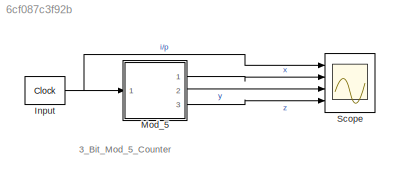
MODEL slx_6cf087c3f92b
KIND model
CONFIG AbsTol = auto
CONFIG EnableMultiTasking = off
CONFIG FixedStep = auto
CONFIG MaxStep = auto
CONFIG MinStep = auto
CONFIG RelTol = 1e-3
CONFIG SampleTimeConstraint = Unconstrained
CONFIG SolverName = VariableStepAuto
CONFIG StartTime = 0.0
CONFIG StopTime = 10.0
BLOCK [Reference] Input  REF=simulink_extras/Flip Flops/Clock
  Ports = [0, 1]
  SourceBlock = simulink_extras/Flip Flops/Clock
  SourceProductBaseCode = SL
  SourceType = Digital clock
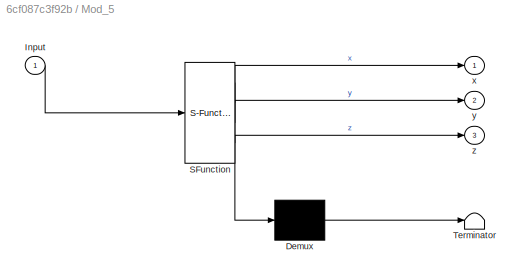
BLOCK [SubSystem] Mod_5
  ErrorFcn = Stateflow.Translate.translate
  PermitHierarchicalResolution = ExplicitOnly
  Ports = [1, 3]
  RequestExecContextInheritance = off
  SFBlockType = Chart
  TreatAsAtomicUnit = on
BLOCK [Demux] Mod_5/ Demux 
  Outputs = 1
  Ports = [1, 1]
BLOCK [S-Function] Mod_5/ SFunction 
  EnableBusSupport = on
  FunctionName = sf_sfun
  PortCounts = [1 4]
  Ports = [1, 4]
  SFcnIsStateOwnerBlock = off
  SFunctionDeploymentMode = off
  Tag = Stateflow S-Function 3
BLOCK [Terminator] Mod_5/ Terminator 
BLOCK [Inport] Mod_5/Input
BLOCK [Outport] Mod_5/x
BLOCK [Outport] Mod_5/y
  Port = 2
BLOCK [Outport] Mod_5/z
  Port = 3
BLOCK [Scope] Scope
  Floating = off
  NumInputPorts = 4
  Ports = [4]
  ScopeSpecificationString = Simulink.scopes.TimeScopeBlockCfg('CurrentConfiguration', extmgr.ConfigurationSet(extmgr.Configuration('Core','General UI',true),extmgr.Configuration('Core','Source UI',true),extmgr.Configuration('Sources','WiredSimulink',true),extmgr.Configuration('Visuals','Time Domain',true,'SerializedDisplays',{struct('MinYLimReal','-0.125','MaxYLimReal','1.125','YLabelReal','','MinYLimMag','0.00000','MaxYLimM...<+3366ch>
ANNOTATION (root): 3_Bit_Mod_5_Counter
NET Input:1 -> Mod_5:1, Scope:1
LINE Mod_5:1 -> Scope:2
LINE Mod_5:2 -> Scope:3
LINE Mod_5:3 -> Scope:4
note: NET lines group one-source signal fan-out (src -> all destinations, sorted); 1:1 wires keep LINE
CHART Mod_5 states=5 transitions=6
  STATE_LABEL 'State1\nen: x=0; y=0; z=0;'
  STATE_LABEL 'State2\nen: z=0; y=0; x=1;'
  STATE_LABEL 'State3\nen: z=0;  y=1; x=0;'
  STATE_LABEL 'State4\nen: z=0; y=1;  x=1;'
  STATE_LABEL 'State5\nen: z=1; y=1; x=0;'
CHART  states=0 transitions=0
